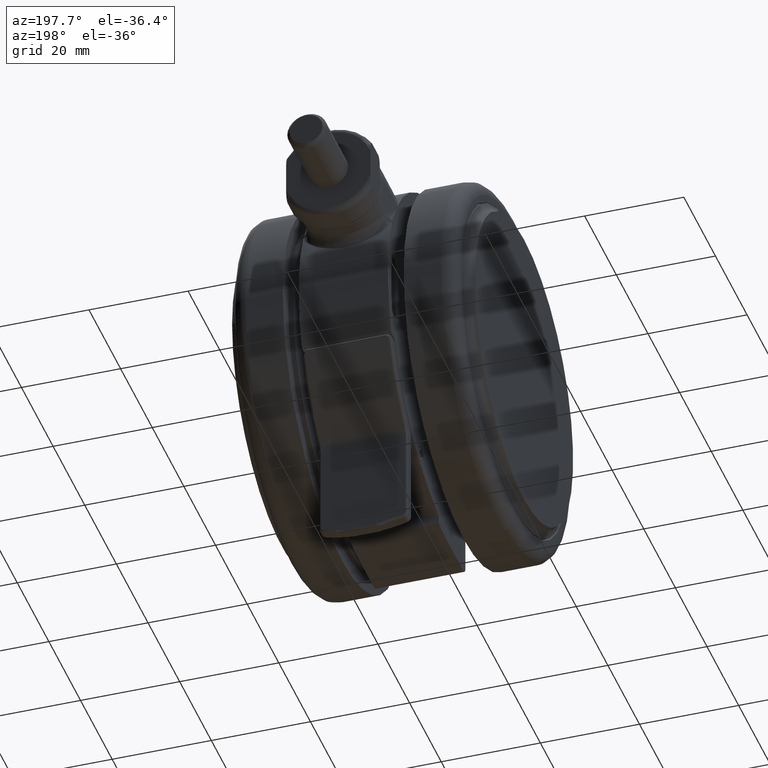
[diagram: clean part render]
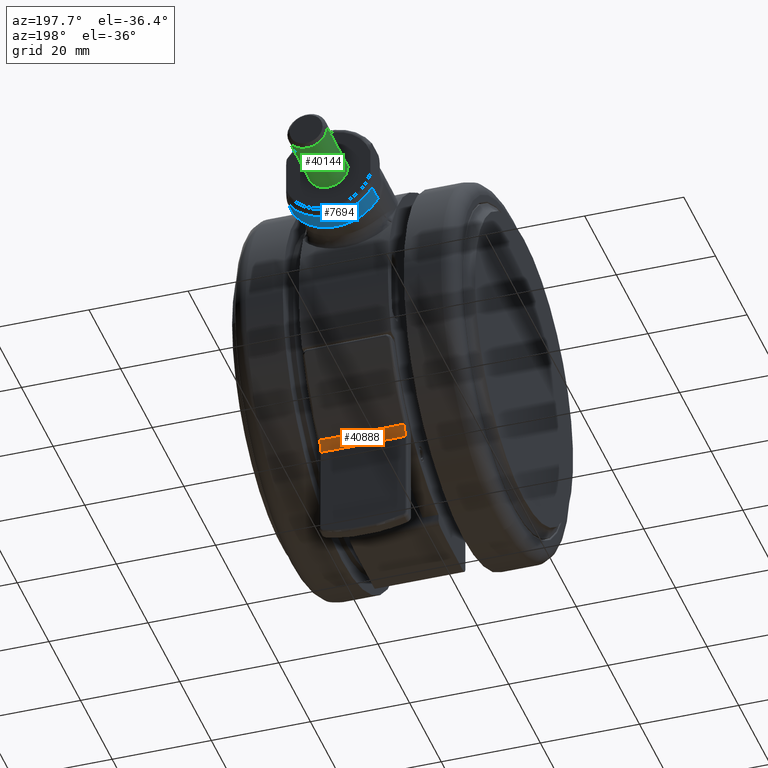
[diagram: same view with three faces highlighted in distinct colors, each labeled with its STEP entity id]
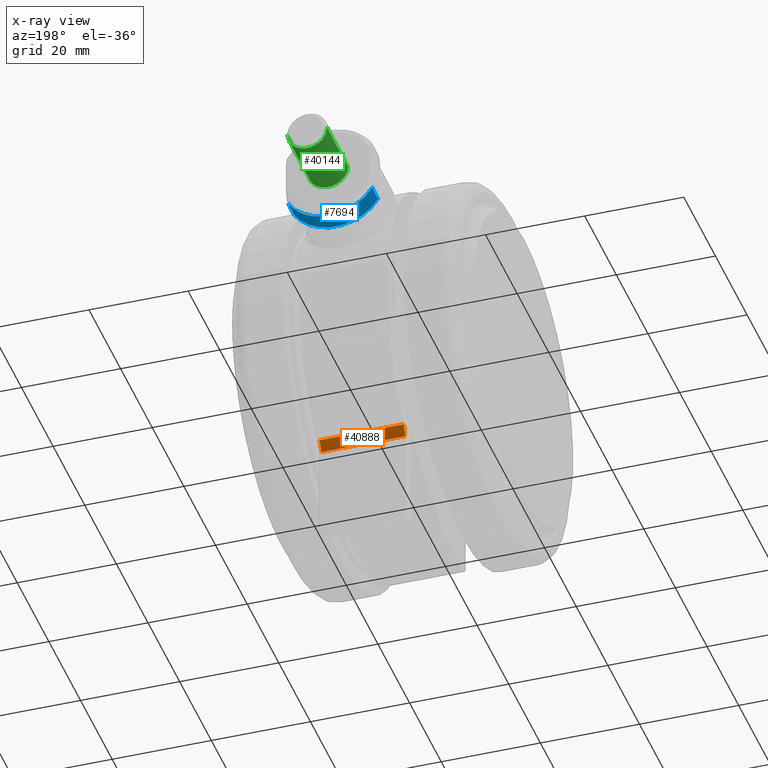
[diagram: x-ray of the same camera — body ghosted, the three highlighted faces saturated]
A machine part, auxiliary view with three faces highlighted in distinct colors.
The next image is the same camera in x-ray (body ghosted, the three faces saturated) — at least one of them is partly hidden behind the body in this view.
Their STEP definitions:

[orange] entity #40888 — the highlighted cylindrical surface (edge-blend (fillet) strip) has radius 3 mm, axis along (-1, 0, -0).
#233 = VECTOR ( 'NONE', #31806, 1000.000000000000000 ) ;
#304 = ORIENTED_EDGE ( 'NONE', *, *, #25314, .F. ) ;
#1926 = VECTOR ( 'NONE', #41655, 1000.000000000000000 ) ;
#2344 = ORIENTED_EDGE ( 'NONE', *, *, #9867, .T. ) ;
#3140 = CARTESIAN_POINT ( 'NONE',  ( -25.00000000000013500, 29.94995826374383100, -32.99999999999654700 ) ) ;
#3378 = DIRECTION ( 'NONE',  ( 0.5000000000000026600, -0.8660254037844370400, 0.0000000000000000000 ) ) ;
#3418 = DIRECTION ( 'NONE',  ( -0.0000000000000000000, 0.0000000000000000000, -1.000000000000000000 ) ) ;
#3714 = AXIS2_PLACEMENT_3D ( 'NONE', #17547, #43744, #21309 ) ;
#5626 = CARTESIAN_POINT ( 'NONE',  ( -25.95121951219525500, 27.75849790298210000, -24.49999999999671700 ) ) ;
#9867 = EDGE_CURVE ( 'NONE', #45311, #30576, #41051, .T. ) ;
#10041 = EDGE_LOOP ( 'NONE', ( #47241, #17174, #2344, #304 ) ) ;
#12999 = LINE ( 'NONE', #37890, #1926 ) ;
#13001 = CARTESIAN_POINT ( 'NONE',  ( -25.00000000000013900, 29.94995826374381700, -15.99999999999654500 ) ) ;
#17174 = ORIENTED_EDGE ( 'NONE', *, *, #37659, .F. ) ;
#17547 = CARTESIAN_POINT ( 'NONE',  ( -28.00000000000050400, 29.94995826374394100, -15.99999999999654500 ) ) ;
#20392 = FACE_OUTER_BOUND ( 'NONE', #10041, .T. ) ;
#21309 = DIRECTION ( 'NONE',  ( -0.5000000000000027800, 0.8660254037844369300, 0.0000000000000000000 ) ) ;
#21532 = CIRCLE ( 'NONE', #3714, 3.000000000000332600 ) ;
#21859 = EDGE_CURVE ( 'NONE', #28553, #42690, #21532, .T. ) ;
#22743 = AXIS2_PLACEMENT_3D ( 'NONE', #48201, #40638, #3378 ) ;
#25314 = EDGE_CURVE ( 'NONE', #28553, #30576, #32397, .T. ) ;
#25783 = CARTESIAN_POINT ( 'NONE',  ( -28.00000000000042600, 29.94995826374388800, -32.99999999999654700 ) ) ;
#26426 = AXIS2_PLACEMENT_3D ( 'NONE', #25783, #3418, #29558 ) ;
#28553 = VERTEX_POINT ( 'NONE', #45036 ) ;
#29157 = CYLINDRICAL_SURFACE ( 'NONE', #22743, 3.000000000000083900 ) ;
#29558 = DIRECTION ( 'NONE',  ( 0.5000000000000023300, -0.8660254037844372600, 0.0000000000000000000 ) ) ;
#30576 = VERTEX_POINT ( 'NONE', #32387 ) ;
#31806 = DIRECTION ( 'NONE',  ( -0.0000000000000000000, 0.0000000000000000000, -1.000000000000000000 ) ) ;
#32387 = CARTESIAN_POINT ( 'NONE',  ( -25.95121951219525500, 27.75849790298210000, -32.99999999999654700 ) ) ;
#32397 = LINE ( 'NONE', #5626, #233 ) ;
#37659 = EDGE_CURVE ( 'NONE', #45311, #42690, #12999, .T. ) ;
#37890 = CARTESIAN_POINT ( 'NONE',  ( -25.00000000000013900, 29.94995826374381700, -24.49999999999654300 ) ) ;
#40638 = DIRECTION ( 'NONE',  ( -0.0000000000000000000, 0.0000000000000000000, -1.000000000000000000 ) ) ;
#40888 = ADVANCED_FACE ( 'NONE', ( #20392 ), #29157, .F. ) ;
#41051 = CIRCLE ( 'NONE', #26426, 3.000000000000279800 ) ;
#41655 = DIRECTION ( 'NONE',  ( 0.0000000000000000000, 0.0000000000000000000, 1.000000000000000000 ) ) ;
#42690 = VERTEX_POINT ( 'NONE', #13001 ) ;
#43744 = DIRECTION ( 'NONE',  ( 0.0000000000000000000, 0.0000000000000000000, 1.000000000000000000 ) ) ;
#45036 = CARTESIAN_POINT ( 'NONE',  ( -25.95121951219525500, 27.75849790298210000, -15.99999999999654500 ) ) ;
#45311 = VERTEX_POINT ( 'NONE', #3140 ) ;
#47241 = ORIENTED_EDGE ( 'NONE', *, *, #21859, .T. ) ;
#48201 = CARTESIAN_POINT ( 'NONE',  ( -28.00000000000020600, 29.94995826374390200, -15.99999999999654500 ) ) ;

[blue] entity #7694 — the highlighted cylindrical surface (partial cylindrical patch) has radius 10 mm, axis along (0, -1, 0).
#2720 = CARTESIAN_POINT ( 'NONE',  ( -45.89999999999993500, -14.73217312357376400, -32.99999999999994300 ) ) ;
#4233 = CARTESIAN_POINT ( 'NONE',  ( -42.09999999999991600, -20.00000000000012100, -24.49999999999994700 ) ) ;
#7612 = EDGE_CURVE ( 'NONE', #16038, #13605, #45379, .T. ) ;
#7652 = DIRECTION ( 'NONE',  ( 1.000000000000000000, 2.997602166487920300E-015, 0.0000000000000000000 ) ) ;
#7694 = ADVANCED_FACE ( 'NONE', ( #13142 ), #21917, .T. ) ;
#7922 = DIRECTION ( 'NONE',  ( 1.000000000000000000, 2.997602166487920300E-015, 0.0000000000000000000 ) ) ;
#7972 = DIRECTION ( 'NONE',  ( 0.0000000000000000000, 0.0000000000000000000, -1.000000000000000000 ) ) ;
#13142 = FACE_OUTER_BOUND ( 'NONE', #43382, .T. ) ;
#13605 = VERTEX_POINT ( 'NONE', #13839 ) ;
#13696 = CARTESIAN_POINT ( 'NONE',  ( -45.89999999999992000, -20.00000000000013100, -24.49999999999994700 ) ) ;
#13839 = CARTESIAN_POINT ( 'NONE',  ( -42.09999999999993700, -14.73217312357375300, -15.99999999999994500 ) ) ;
#14051 = VECTOR ( 'NONE', #7652, 1000.000000000000000 ) ;
#14554 = EDGE_CURVE ( 'NONE', #13605, #21103, #31510, .T. ) ;
#15500 = VECTOR ( 'NONE', #25861, 1000.000000000000000 ) ;
#16038 = VERTEX_POINT ( 'NONE', #39504 ) ;
#17349 = CIRCLE ( 'NONE', #41302, 10.00000000000000200 ) ;
#17468 = DIRECTION ( 'NONE',  ( 0.0000000000000000000, 0.0000000000000000000, -1.000000000000000000 ) ) ;
#21103 = VERTEX_POINT ( 'NONE', #29283 ) ;
#21917 = CYLINDRICAL_SURFACE ( 'NONE', #45797, 10.00000000000000000 ) ;
#22855 = LINE ( 'NONE', #33801, #14051 ) ;
#22916 = DIRECTION ( 'NONE',  ( 0.0000000000000000000, 0.0000000000000000000, 1.000000000000000000 ) ) ;
#23378 = VERTEX_POINT ( 'NONE', #2720 ) ;
#25340 = AXIS2_PLACEMENT_3D ( 'NONE', #4233, #30358, #7972 ) ;
#25861 = DIRECTION ( 'NONE',  ( 1.000000000000000000, 2.997602166487920300E-015, 0.0000000000000000000 ) ) ;
#26516 = CARTESIAN_POINT ( 'NONE',  ( -46.99999999999991500, -20.00000000000013500, -24.49999999999994700 ) ) ;
#29283 = CARTESIAN_POINT ( 'NONE',  ( -42.09999999999993700, -14.73217312357375300, -32.99999999999994300 ) ) ;
#30358 = DIRECTION ( 'NONE',  ( -1.000000000000000000, -2.997602166487920300E-015, 0.0000000000000000000 ) ) ;
#31510 = CIRCLE ( 'NONE', #25340, 10.00000000000000200 ) ;
#33801 = CARTESIAN_POINT ( 'NONE',  ( -46.99999999999992900, -14.73217312357376800, -32.99999999999994300 ) ) ;
#34827 = EDGE_CURVE ( 'NONE', #23378, #16038, #17349, .T. ) ;
#37277 = ORIENTED_EDGE ( 'NONE', *, *, #34827, .T. ) ;
#39504 = CARTESIAN_POINT ( 'NONE',  ( -45.89999999999993500, -14.73217312357376400, -15.99999999999994500 ) ) ;
#39894 = DIRECTION ( 'NONE',  ( 1.000000000000000000, 2.997602166487920300E-015, -0.0000000000000000000 ) ) ;
#40292 = ORIENTED_EDGE ( 'NONE', *, *, #7612, .T. ) ;
#40921 = CARTESIAN_POINT ( 'NONE',  ( -46.99999999999992900, -14.73217312357376800, -15.99999999999994500 ) ) ;
#41302 = AXIS2_PLACEMENT_3D ( 'NONE', #13696, #39894, #17468 ) ;
#42798 = ORIENTED_EDGE ( 'NONE', *, *, #14554, .T. ) ;
#42923 = EDGE_CURVE ( 'NONE', #23378, #21103, #22855, .T. ) ;
#43382 = EDGE_LOOP ( 'NONE', ( #45244, #37277, #40292, #42798 ) ) ;
#45244 = ORIENTED_EDGE ( 'NONE', *, *, #42923, .F. ) ;
#45379 = LINE ( 'NONE', #40921, #15500 ) ;
#45797 = AXIS2_PLACEMENT_3D ( 'NONE', #26516, #7922, #22916 ) ;

[green] entity #40144 — the highlighted cylindrical surface (edge-blend (fillet) strip) has radius 4 mm, axis along (0, -1, 0).
#39 = FACE_OUTER_BOUND ( 'NONE', #40253, .T. ) ;
#2005 = ORIENTED_EDGE ( 'NONE', *, *, #16047, .F. ) ;
#2811 = DIRECTION ( 'NONE',  ( -1.000000000000000000, -2.997602166487920300E-015, 0.0000000000000000000 ) ) ;
#4954 = EDGE_CURVE ( 'NONE', #36122, #31006, #47240, .T. ) ;
#9778 = LINE ( 'NONE', #47075, #48434 ) ;
#11069 = VERTEX_POINT ( 'NONE', #32129 ) ;
#11832 = ORIENTED_EDGE ( 'NONE', *, *, #18095, .T. ) ;
#12304 = CARTESIAN_POINT ( 'NONE',  ( -60.31999999999991500, -20.00000000000017400, -20.49999999999995700 ) ) ;
#14886 = CIRCLE ( 'NONE', #22218, 4.000000000000000000 ) ;
#15437 = CARTESIAN_POINT ( 'NONE',  ( -60.99999999999991500, -20.00000000000017800, -20.49999999999994700 ) ) ;
#16047 = EDGE_CURVE ( 'NONE', #37980, #11069, #9778, .T. ) ;
#17049 = CARTESIAN_POINT ( 'NONE',  ( -60.31999999999991500, -20.00000000000017800, -24.49999999999994700 ) ) ;
#18095 = EDGE_CURVE ( 'NONE', #37980, #36122, #48245, .T. ) ;
#20821 = DIRECTION ( 'NONE',  ( 0.0000000000000000000, 0.0000000000000000000, -1.000000000000000000 ) ) ;
#21113 = ORIENTED_EDGE ( 'NONE', *, *, #36352, .T. ) ;
#22218 = AXIS2_PLACEMENT_3D ( 'NONE', #25176, #2811, #28950 ) ;
#25176 = CARTESIAN_POINT ( 'NONE',  ( -46.99999999999991500, -20.00000000000013500, -24.49999999999994700 ) ) ;
#27400 = AXIS2_PLACEMENT_3D ( 'NONE', #38117, #38276, #42042 ) ;
#28305 = ORIENTED_EDGE ( 'NONE', *, *, #4954, .T. ) ;
#28375 = CARTESIAN_POINT ( 'NONE',  ( -46.99999999999991500, -20.00000000000015600, -20.49999999999994700 ) ) ;
#28655 = CYLINDRICAL_SURFACE ( 'NONE', #27400, 4.000000000000000000 ) ;
#28950 = DIRECTION ( 'NONE',  ( 0.0000000000000000000, 0.0000000000000000000, -1.000000000000000000 ) ) ;
#29174 = CARTESIAN_POINT ( 'NONE',  ( -60.31999999999991500, -20.00000000000017400, -28.49999999999993600 ) ) ;
#31006 = VERTEX_POINT ( 'NONE', #28375 ) ;
#32129 = CARTESIAN_POINT ( 'NONE',  ( -46.99999999999991500, -20.00000000000015600, -28.49999999999994700 ) ) ;
#36122 = VERTEX_POINT ( 'NONE', #12304 ) ;
#36352 = EDGE_CURVE ( 'NONE', #31006, #11069, #14886, .T. ) ;
#37290 = VECTOR ( 'NONE', #45400, 1000.000000000000000 ) ;
#37406 = AXIS2_PLACEMENT_3D ( 'NONE', #17049, #43262, #20821 ) ;
#37980 = VERTEX_POINT ( 'NONE', #29174 ) ;
#38117 = CARTESIAN_POINT ( 'NONE',  ( -60.99999999999991500, -20.00000000000017800, -24.49999999999994700 ) ) ;
#38276 = DIRECTION ( 'NONE',  ( 1.000000000000000000, 2.997602166487920300E-015, 0.0000000000000000000 ) ) ;
#40144 = ADVANCED_FACE ( 'NONE', ( #39 ), #28655, .T. ) ;
#40253 = EDGE_LOOP ( 'NONE', ( #2005, #11832, #28305, #21113 ) ) ;
#42042 = DIRECTION ( 'NONE',  ( 0.0000000000000000000, 0.0000000000000000000, 1.000000000000000000 ) ) ;
#43262 = DIRECTION ( 'NONE',  ( 1.000000000000000000, 2.997602166487920300E-015, -0.0000000000000000000 ) ) ;
#43301 = DIRECTION ( 'NONE',  ( 1.000000000000000000, 2.997602166487920300E-015, 0.0000000000000000000 ) ) ;
#45400 = DIRECTION ( 'NONE',  ( 1.000000000000000000, 2.997602166487920300E-015, 0.0000000000000000000 ) ) ;
#47075 = CARTESIAN_POINT ( 'NONE',  ( -60.99999999999991500, -20.00000000000017800, -28.49999999999994700 ) ) ;
#47240 = LINE ( 'NONE', #15437, #37290 ) ;
#48245 = CIRCLE ( 'NONE', #37406, 4.000000000000000000 ) ;
#48434 = VECTOR ( 'NONE', #43301, 1000.000000000000000 ) ;